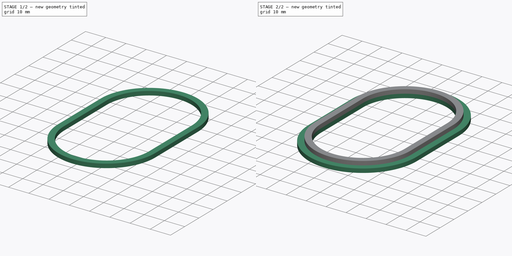
[diagram: build sequence overview — one tinted view per stage of 2, left to right]
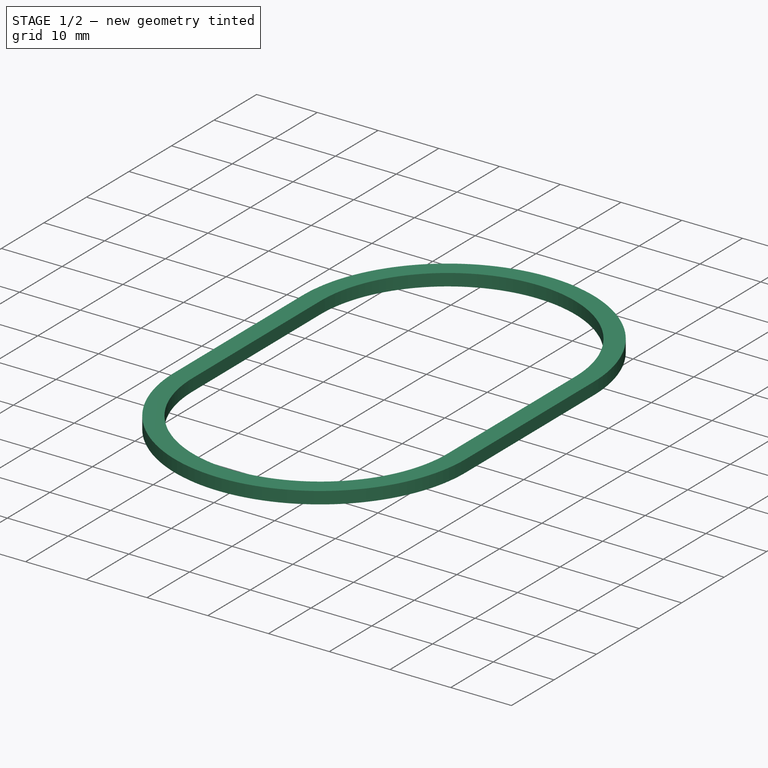
[diagram: stage 1 of 2 — iso view after this stage's code; geometry added in this stage tinted green]
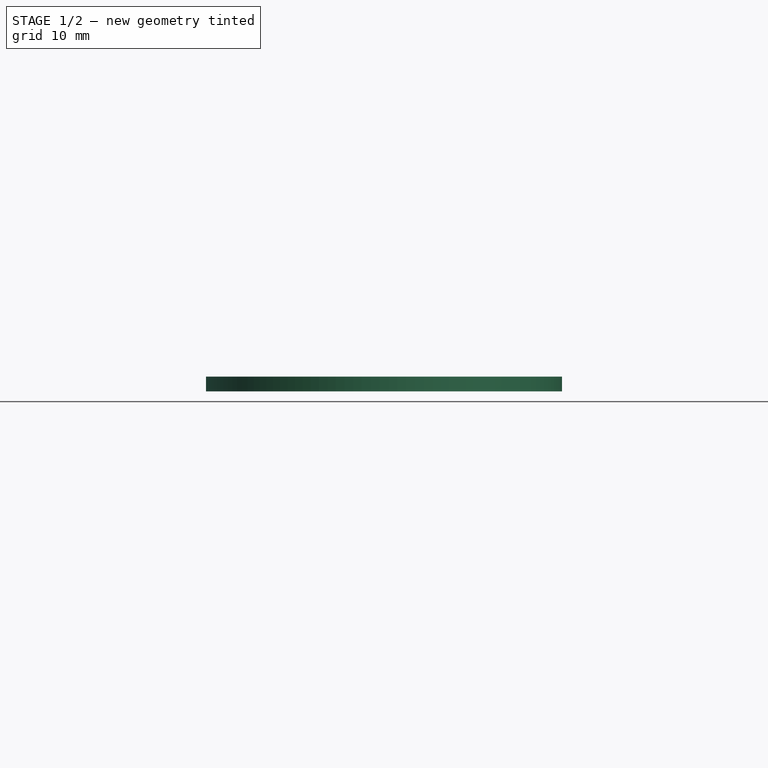
[diagram: stage 1 of 2 — front view after this stage's code; geometry added in this stage tinted green]
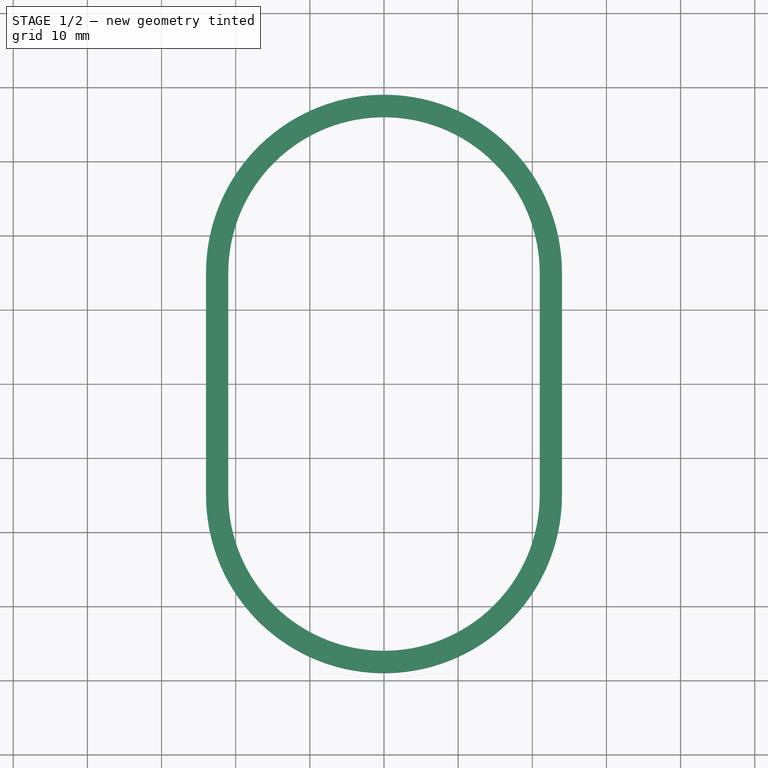
[diagram: stage 1 of 2 — top view after this stage's code; geometry added in this stage tinted green]
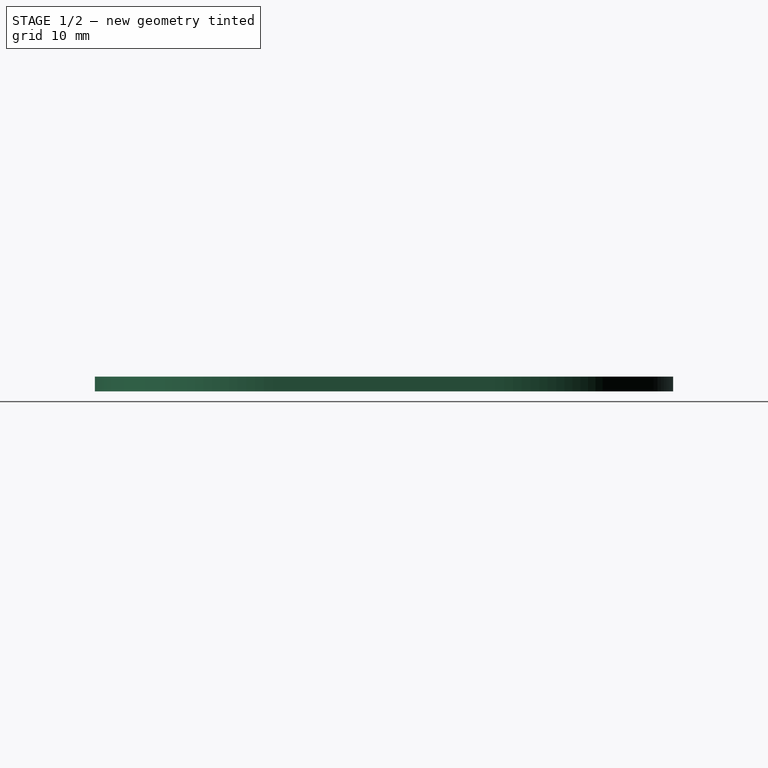
[diagram: stage 1 of 2 — right view after this stage's code; geometry added in this stage tinted green]
FCSTD DOCUMENT  (FreeCAD 0.21R33771 (Git))
Label: BikeBatteryCoverBottom
License: All rights reserved
LicenseURL: https://en.wikipedia.org/wiki/All_rights_reserved
objects: Sketcher::SketchObject×2, PartDesign::Pad×2, PartDesign::Body×1
note: 7 computed .brp shape members not serialized (recipe doc carries the construction recipe); baked Part::Feature solids carry a one-line shape summary decoded from their .brp

FEATURE [Sketcher::SketchObject] Sketch
  FullyConstrained = true
  MapMode = 5
  Support = -> [XY_Plane]
  sketch-geometry (10):
    g0: ArcOfCircle CenterX=0 CenterY=15 CenterZ=0 NormalX=0 NormalY=0 NormalZ=1 AngleXU=0 Radius=24 StartAngle=0 EndAngle=3.14159
    g1: ArcOfCircle CenterX=0 CenterY=-15 CenterZ=0 NormalX=0 NormalY=0 NormalZ=1 AngleXU=0 Radius=24 StartAngle=3.14159 EndAngle=6.28319
    g2: LineSegment StartX=-24 StartY=15 StartZ=0 EndX=-24 EndY=-15 EndZ=0
    g3: LineSegment StartX=24 StartY=-15 StartZ=0 EndX=24 EndY=15 EndZ=0
    g4: GeomPoint X=0 Y=-39 Z=0
    g5: GeomPoint X=0 Y=39 Z=0
    g6: ArcOfCircle CenterX=0 CenterY=15 CenterZ=0 NormalX=0 NormalY=0 NormalZ=1 AngleXU=0 Radius=21 StartAngle=0 EndAngle=3.14159
    g7: ArcOfCircle CenterX=0 CenterY=-15 CenterZ=0 NormalX=0 NormalY=0 NormalZ=1 AngleXU=0 Radius=21 StartAngle=3.14159 EndAngle=6.28319
    g8: LineSegment StartX=-21 StartY=15 StartZ=0 EndX=-21 EndY=-15 EndZ=0
    g9: LineSegment StartX=21 StartY=-15 StartZ=0 EndX=21 EndY=15 EndZ=0
  constraints (21):
    c: Tangent(g0,g2) = -1.5708
    c: Tangent(g2,g1) = -1.5708
    c: Tangent(g1,g3) = -1.5708
    c: Tangent(g3,g0) = -1.5708
    c: Equal(g0,g1)
    c: PointOnObject(g1,g-2)
    c: Symmetric(g1,g0,g-1)
    c: PointOnObject(g4,g1)
    c: PointOnObject(g5,g0)
    c: PointOnObject(g5,g-2)
    c: PointOnObject(g4,g-2)
    c: DistanceY(g4,g5) = 78
    c: DistanceX(g1,g1) = 48
    c: Tangent(g6,g8) = -1.5708
    c: Tangent(g8,g7) = -1.5708
    c: Tangent(g7,g9) = -1.5708
    c: Tangent(g9,g6) = -1.5708
    c: Equal(g6,g7)
    c: Coincident(g6,g0)
    c: Coincident(g7,g1)
    c: DistanceX(g1,g7) = 3
FEATURE [PartDesign::Pad] Pad  label="MainBody"
  Direction = (0,0,1)
  Length = 2
  Length2 = 10
  Profile = -> Sketch
  ReferenceAxis = -> Sketch [N_Axis]
  Type = 0
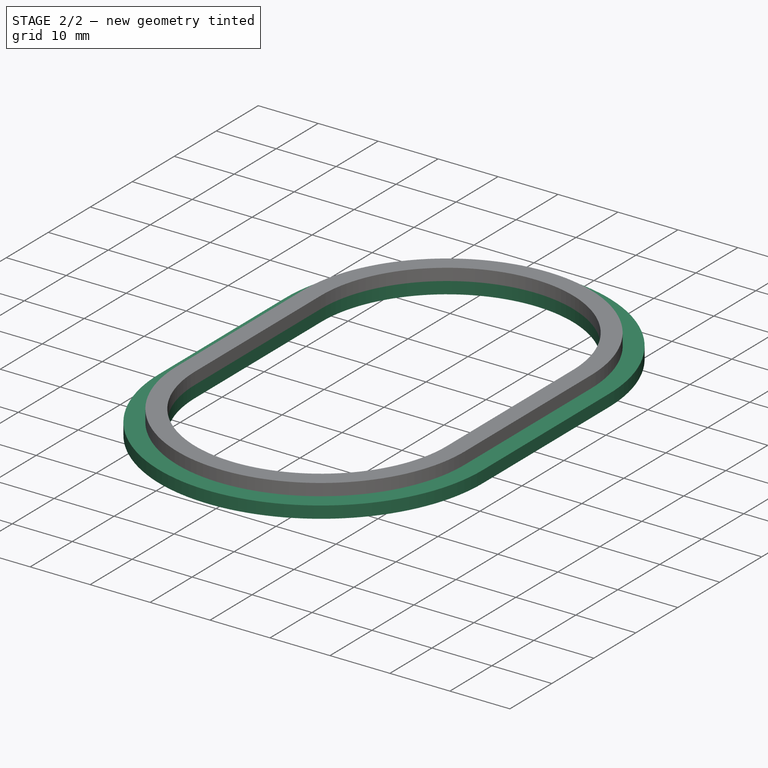
[diagram: stage 2 of 2 — iso view after this stage's code; geometry added in this stage tinted green]
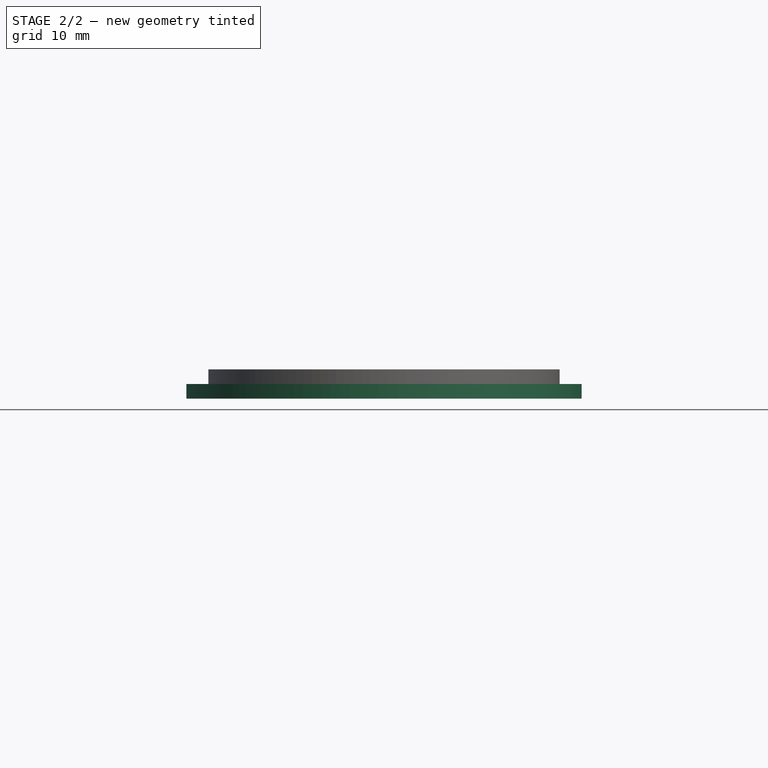
[diagram: stage 2 of 2 — front view after this stage's code; geometry added in this stage tinted green]
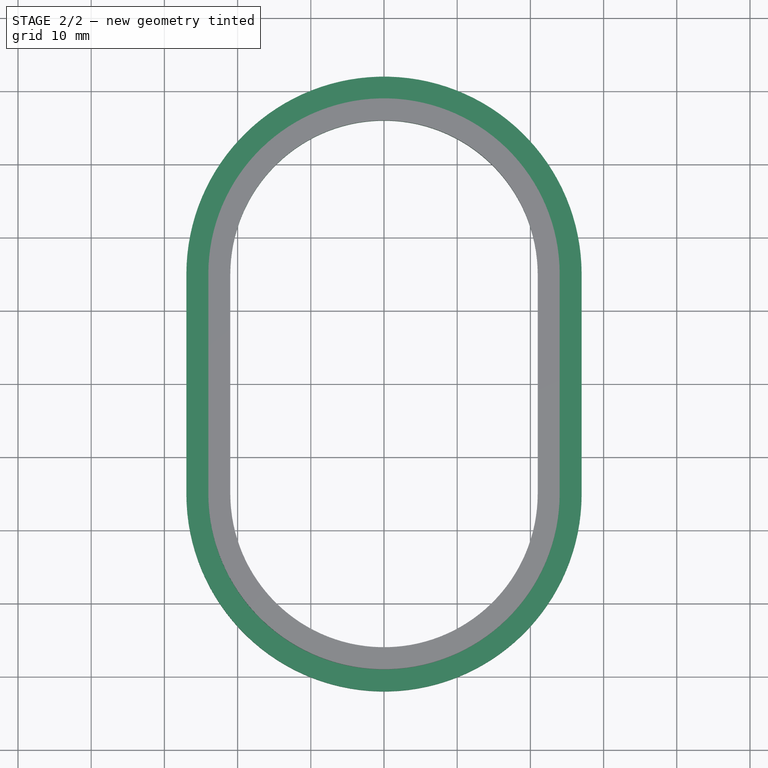
[diagram: stage 2 of 2 — top view after this stage's code; geometry added in this stage tinted green]
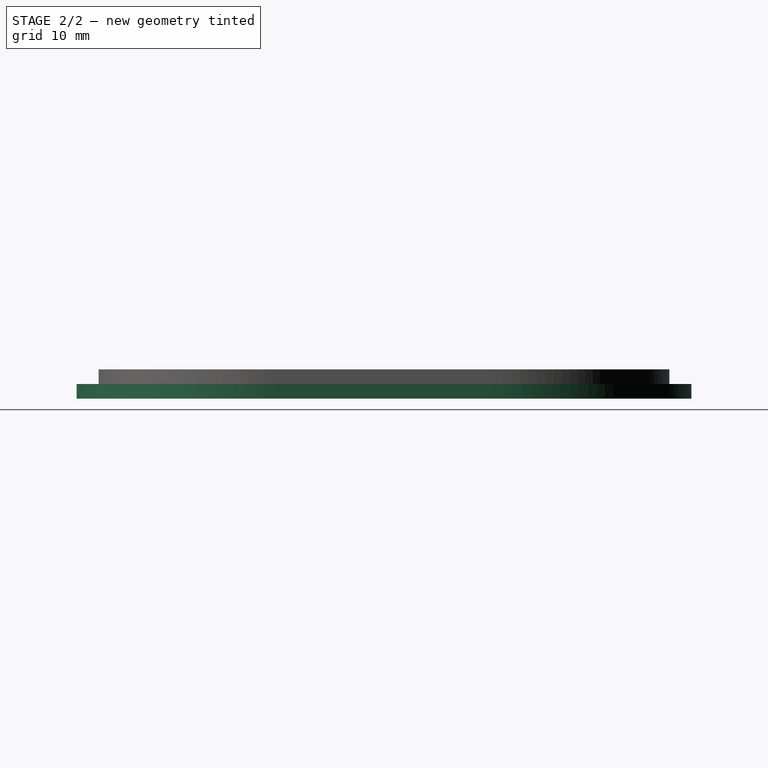
[diagram: stage 2 of 2 — right view after this stage's code; geometry added in this stage tinted green]
FEATURE [Sketcher::SketchObject] Sketch001
  ExternalGeometry = -> [Pad]
  FullyConstrained = true
  MapMode = 5
  Placement = pos=(0,0,0) rot=(1,0,0;3.14159rad)
  Support = -> [Pad]
  sketch-geometry (8):
    g0: ArcOfCircle CenterX=0 CenterY=15 CenterZ=0 NormalX=0 NormalY=0 NormalZ=1 AngleXU=0 Radius=27 StartAngle=0 EndAngle=3.14159
    g1: ArcOfCircle CenterX=0 CenterY=-15 CenterZ=0 NormalX=0 NormalY=0 NormalZ=1 AngleXU=0 Radius=27 StartAngle=3.14159 EndAngle=6.28319
    g2: LineSegment StartX=-27 StartY=15 StartZ=0 EndX=-27 EndY=-15 EndZ=0
    g3: LineSegment StartX=27 StartY=-15 StartZ=0 EndX=27 EndY=15 EndZ=0
    g4: ArcOfCircle CenterX=0 CenterY=15 CenterZ=0 NormalX=0 NormalY=0 NormalZ=1 AngleXU=0 Radius=21 StartAngle=-1.0312e-12 EndAngle=3.14159
    g5: ArcOfCircle CenterX=0 CenterY=-15 CenterZ=0 NormalX=0 NormalY=0 NormalZ=1 AngleXU=0 Radius=21 StartAngle=3.14159 EndAngle=6.28319
    g6: LineSegment StartX=-21 StartY=15 StartZ=0 EndX=-21 EndY=-15 EndZ=0
    g7: LineSegment StartX=21 StartY=-15 StartZ=0 EndX=21 EndY=15 EndZ=0
  constraints (16):
    c: Tangent(g0,g2) = -1.5708
    c: Tangent(g2,g1) = -1.5708
    c: Tangent(g1,g3) = -1.5708
    c: Tangent(g3,g0) = -1.5708
    c: Coincident(g0,g-3)
    c: Coincident(g1,g-5)
    c: Tangent(g4,g6) = -1.5708
    c: Tangent(g6,g5) = -1.5708
    c: Tangent(g5,g7) = -1.5708
    c: Tangent(g7,g4) = -1.5708
    c: Equal(g4,g5)
    c: Coincident(g4,g0)
    c: Coincident(g5,g1)
    c: Equal(g5,g-5)
    c: Vertical(g2)
    c: DistanceX(g1,g-4) = 3
FEATURE [PartDesign::Pad] Pad001  label="BottomPlate"
  BaseFeature = -> Pad
  Direction = (0,0,-1)
  Length = 2
  Length2 = 10
  Profile = -> Sketch001
  ReferenceAxis = -> Sketch001 [N_Axis]
  Type = 0
FEATURE [PartDesign::Body] Body  label="Körper"
  Group = -> [Sketch,Pad,Sketch001,Pad001]
  Origin = -> Origin
  Tip = -> Pad001
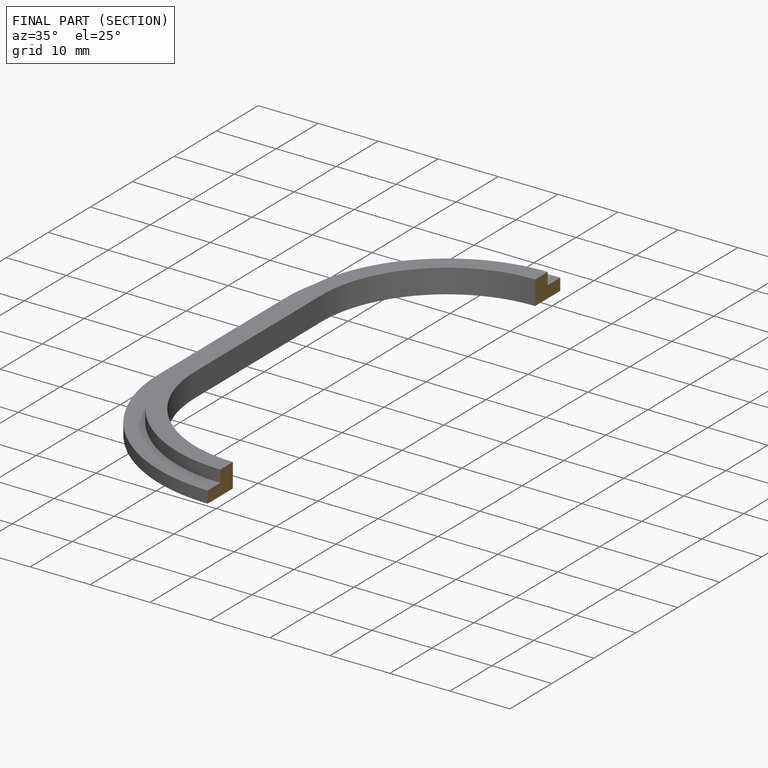
[diagram: finished part — half-section view (interior)]
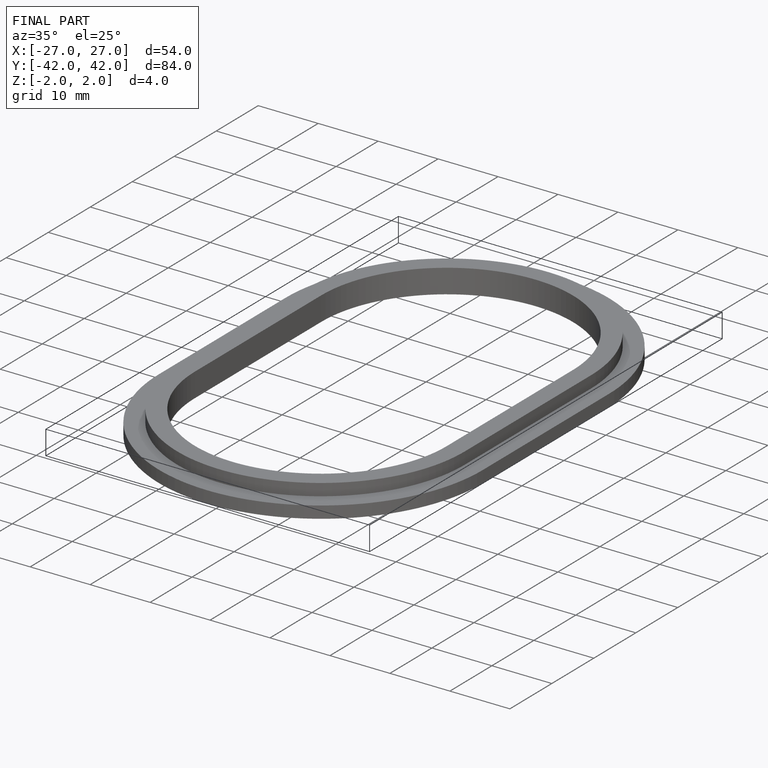
[diagram: finished part — iso view with bounding-box wireframe]
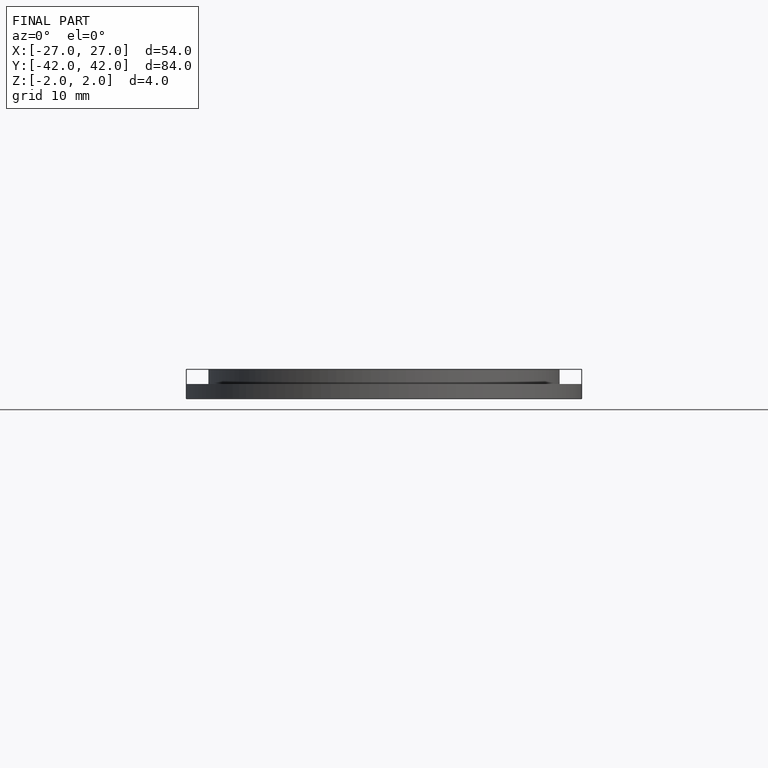
[diagram: finished part — front view with bounding-box wireframe]
